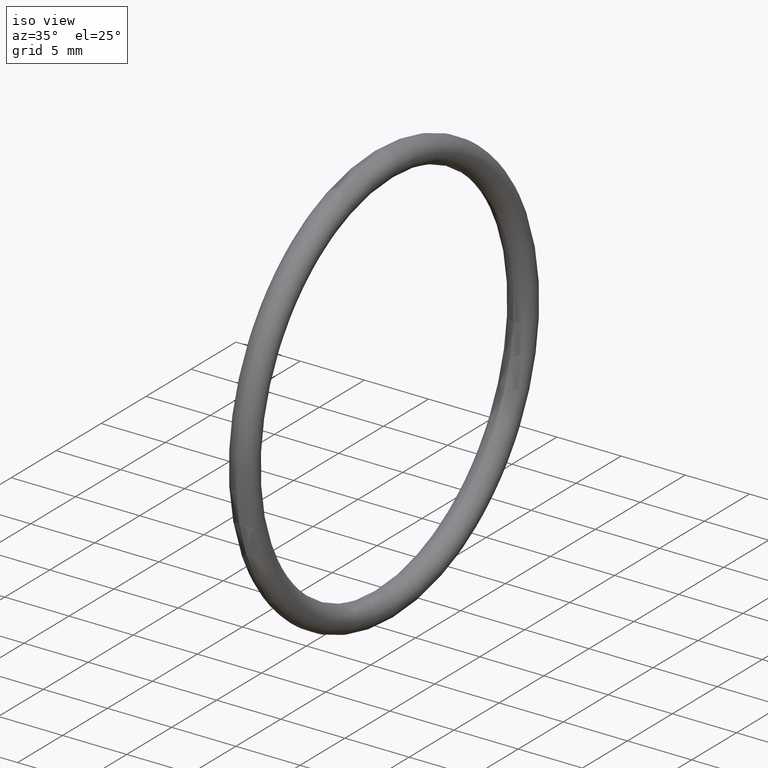
[diagram: clean part render]
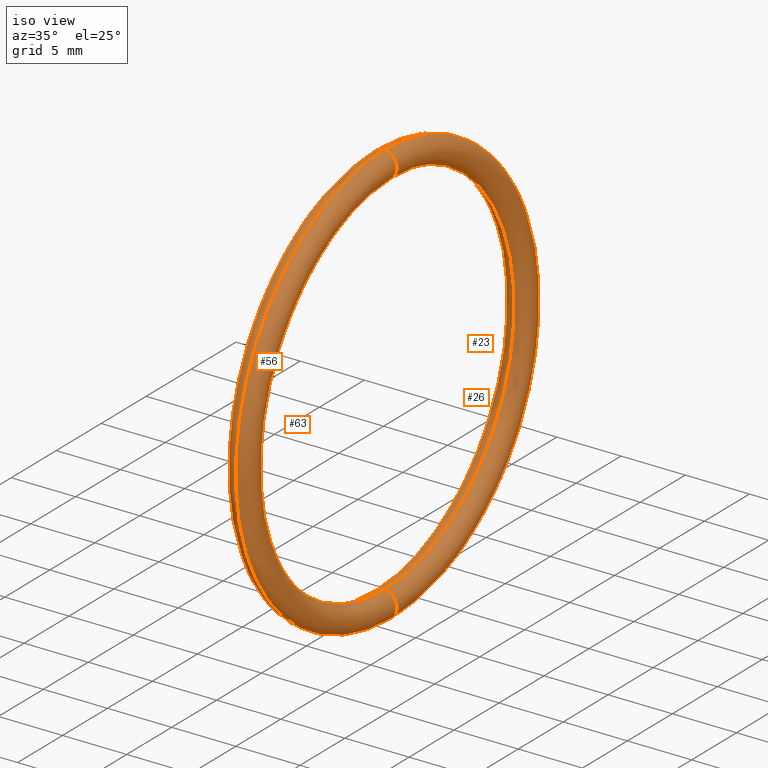
[diagram: same view with one multi-face feature highlighted, each face labeled with its STEP entity id]
A machine part, iso view. The highlighted faces form ONE feature: a constant-radius fillet chain: 4 tangent blend faces with common blend radius 1.016 mm. The faces share edges in the B-rep.
Their STEP definitions:
[1] entity #56 (Torus):
#5 = CARTESIAN_POINT ( 'NONE',  ( 0.1000000000000000700, 0.0000000000000000000, 0.5699999999999999500 ) ) ;
#6 = DIRECTION ( 'NONE',  ( 0.0000000000000000000, 0.0000000000000000000, -1.000000000000000000 ) ) ;
#7 = DIRECTION ( 'NONE',  ( 0.0000000000000000000, -1.000000000000000000, 0.0000000000000000000 ) ) ;
#8 = AXIS2_PLACEMENT_3D ( 'NONE', #15, #7, #6 ) ;
#9 = CIRCLE ( 'NONE', #8, 0.03999999999999998000 ) ;
#15 = CARTESIAN_POINT ( 'NONE',  ( 0.1000000000000000700, 0.0000000000000000000, 0.6099999999999998800 ) ) ;
#18 = EDGE_LOOP ( 'NONE', ( #52, #29, #32, #21 ) ) ;
#19 = EDGE_CURVE ( 'NONE', #31, #20, #9, .T. ) ;
#20 = VERTEX_POINT ( 'NONE', #5 ) ;
#21 = ORIENTED_EDGE ( 'NONE', *, *, #47, .F. ) ;
#29 = ORIENTED_EDGE ( 'NONE', *, *, #30, .T. ) ;
#30 = EDGE_CURVE ( 'NONE', #54, #31, #70, .T. ) ;
#31 = VERTEX_POINT ( 'NONE', #78 ) ;
#32 = ORIENTED_EDGE ( 'NONE', *, *, #19, .T. ) ;
#47 = EDGE_CURVE ( 'NONE', #48, #20, #83, .T. ) ;
#48 = VERTEX_POINT ( 'NONE', #66 ) ;
#52 = ORIENTED_EDGE ( 'NONE', *, *, #53, .F. ) ;
#53 = EDGE_CURVE ( 'NONE', #54, #48, #65, .T. ) ;
#54 = VERTEX_POINT ( 'NONE', #159 ) ;
#56 = ADVANCED_FACE ( 'NONE', ( #158 ), #157, .T. ) ;
#65 = CIRCLE ( 'NONE', #163, 0.03999999999999998000 ) ;
#66 = CARTESIAN_POINT ( 'NONE',  ( 0.1000000000000000700, 6.980486755139912600E-017, -0.5699999999999999500 ) ) ;
#67 = DIRECTION ( 'NONE',  ( 0.0000000000000000000, 0.0000000000000000000, 1.000000000000000000 ) ) ;
#68 = DIRECTION ( 'NONE',  ( -1.000000000000000000, 0.0000000000000000000, 0.0000000000000000000 ) ) ;
#69 = CARTESIAN_POINT ( 'NONE',  ( 0.1000000000000000700, 0.0000000000000000000, 0.0000000000000000000 ) ) ;
#70 = CIRCLE ( 'NONE', #77, 0.6499999999999999100 ) ;
#76 = CARTESIAN_POINT ( 'NONE',  ( 0.1000000000000000700, 0.0000000000000000000, 0.0000000000000000000 ) ) ;
#77 = AXIS2_PLACEMENT_3D ( 'NONE', #76, #81, #80 ) ;
#78 = CARTESIAN_POINT ( 'NONE',  ( 0.1000000000000000700, 0.0000000000000000000, 0.6499999999999999100 ) ) ;
#80 = DIRECTION ( 'NONE',  ( 0.0000000000000000000, 0.0000000000000000000, 1.000000000000000000 ) ) ;
#81 = DIRECTION ( 'NONE',  ( -1.000000000000000000, 0.0000000000000000000, 0.0000000000000000000 ) ) ;
#82 = AXIS2_PLACEMENT_3D ( 'NONE', #69, #68, #67 ) ;
#83 = CIRCLE ( 'NONE', #82, 0.5699999999999999500 ) ;
#153 = DIRECTION ( 'NONE',  ( 0.0000000000000000000, 0.0000000000000000000, 1.000000000000000000 ) ) ;
#154 = DIRECTION ( 'NONE',  ( -1.000000000000000000, 0.0000000000000000000, 0.0000000000000000000 ) ) ;
#155 = CARTESIAN_POINT ( 'NONE',  ( 0.1000000000000000700, 0.0000000000000000000, 0.0000000000000000000 ) ) ;
#156 = AXIS2_PLACEMENT_3D ( 'NONE', #155, #154, #153 ) ;
#157 = TOROIDAL_SURFACE ( 'NONE', #156, 0.6099999999999998800, 0.04000000000000000100 ) ;
#158 = FACE_OUTER_BOUND ( 'NONE', #18, .T. ) ;
#159 = CARTESIAN_POINT ( 'NONE',  ( 0.1000000000000000700, 7.960204194457794200E-017, -0.6499999999999999100 ) ) ;
#160 = DIRECTION ( 'NONE',  ( 0.0000000000000000000, -1.224646799147354900E-016, 1.000000000000000000 ) ) ;
#161 = DIRECTION ( 'NONE',  ( 0.0000000000000000000, 1.000000000000000000, 1.224646799147353200E-016 ) ) ;
#162 = CARTESIAN_POINT ( 'NONE',  ( 0.1000000000000000700, 7.470345474798854000E-017, -0.6099999999999998800 ) ) ;
#163 = AXIS2_PLACEMENT_3D ( 'NONE', #162, #161, #160 ) ;
[2] entity #63 (Torus):
#5 = CARTESIAN_POINT ( 'NONE',  ( 0.1000000000000000700, 0.0000000000000000000, 0.5699999999999999500 ) ) ;
#16 = ORIENTED_EDGE ( 'NONE', *, *, #59, .T. ) ;
#20 = VERTEX_POINT ( 'NONE', #5 ) ;
#30 = EDGE_CURVE ( 'NONE', #54, #31, #70, .T. ) ;
#31 = VERTEX_POINT ( 'NONE', #78 ) ;
#47 = EDGE_CURVE ( 'NONE', #48, #20, #83, .T. ) ;
#48 = VERTEX_POINT ( 'NONE', #66 ) ;
#49 = ORIENTED_EDGE ( 'NONE', *, *, #30, .F. ) ;
#50 = ORIENTED_EDGE ( 'NONE', *, *, #62, .F. ) ;
#51 = ORIENTED_EDGE ( 'NONE', *, *, #47, .T. ) ;
#54 = VERTEX_POINT ( 'NONE', #159 ) ;
#59 = EDGE_CURVE ( 'NONE', #20, #31, #152, .T. ) ;
#62 = EDGE_CURVE ( 'NONE', #48, #54, #136, .T. ) ;
#63 = ADVANCED_FACE ( 'NONE', ( #132 ), #130, .T. ) ;
#64 = EDGE_LOOP ( 'NONE', ( #49, #50, #51, #16 ) ) ;
#66 = CARTESIAN_POINT ( 'NONE',  ( 0.1000000000000000700, 6.980486755139912600E-017, -0.5699999999999999500 ) ) ;
#67 = DIRECTION ( 'NONE',  ( 0.0000000000000000000, 0.0000000000000000000, 1.000000000000000000 ) ) ;
#68 = DIRECTION ( 'NONE',  ( -1.000000000000000000, 0.0000000000000000000, 0.0000000000000000000 ) ) ;
#69 = CARTESIAN_POINT ( 'NONE',  ( 0.1000000000000000700, 0.0000000000000000000, 0.0000000000000000000 ) ) ;
#70 = CIRCLE ( 'NONE', #77, 0.6499999999999999100 ) ;
#71 = DIRECTION ( 'NONE',  ( 0.0000000000000000000, 0.0000000000000000000, -1.000000000000000000 ) ) ;
#72 = DIRECTION ( 'NONE',  ( 0.0000000000000000000, -1.000000000000000000, 0.0000000000000000000 ) ) ;
#73 = CARTESIAN_POINT ( 'NONE',  ( 0.1000000000000000700, 0.0000000000000000000, 0.6099999999999998800 ) ) ;
#74 = AXIS2_PLACEMENT_3D ( 'NONE', #73, #72, #71 ) ;
#75 = CARTESIAN_POINT ( 'NONE',  ( 0.1000000000000000700, 7.470345474798854000E-017, -0.6099999999999998800 ) ) ;
#76 = CARTESIAN_POINT ( 'NONE',  ( 0.1000000000000000700, 0.0000000000000000000, 0.0000000000000000000 ) ) ;
#77 = AXIS2_PLACEMENT_3D ( 'NONE', #76, #81, #80 ) ;
#78 = CARTESIAN_POINT ( 'NONE',  ( 0.1000000000000000700, 0.0000000000000000000, 0.6499999999999999100 ) ) ;
#80 = DIRECTION ( 'NONE',  ( 0.0000000000000000000, 0.0000000000000000000, 1.000000000000000000 ) ) ;
#81 = DIRECTION ( 'NONE',  ( -1.000000000000000000, 0.0000000000000000000, 0.0000000000000000000 ) ) ;
#82 = AXIS2_PLACEMENT_3D ( 'NONE', #69, #68, #67 ) ;
#83 = CIRCLE ( 'NONE', #82, 0.5699999999999999500 ) ;
#130 = TOROIDAL_SURFACE ( 'NONE', #131, 0.6099999999999998800, 0.04000000000000000100 ) ;
#131 = AXIS2_PLACEMENT_3D ( 'NONE', #144, #143, #142 ) ;
#132 = FACE_OUTER_BOUND ( 'NONE', #64, .T. ) ;
#133 = DIRECTION ( 'NONE',  ( 0.0000000000000000000, -1.224646799147354900E-016, 1.000000000000000000 ) ) ;
#134 = DIRECTION ( 'NONE',  ( 0.0000000000000000000, 1.000000000000000000, 1.224646799147353200E-016 ) ) ;
#135 = AXIS2_PLACEMENT_3D ( 'NONE', #75, #134, #133 ) ;
#136 = CIRCLE ( 'NONE', #135, 0.03999999999999998000 ) ;
#142 = DIRECTION ( 'NONE',  ( 0.0000000000000000000, 0.0000000000000000000, 1.000000000000000000 ) ) ;
#143 = DIRECTION ( 'NONE',  ( -1.000000000000000000, 0.0000000000000000000, 0.0000000000000000000 ) ) ;
#144 = CARTESIAN_POINT ( 'NONE',  ( 0.1000000000000000700, 0.0000000000000000000, 0.0000000000000000000 ) ) ;
#152 = CIRCLE ( 'NONE', #74, 0.03999999999999998000 ) ;
#159 = CARTESIAN_POINT ( 'NONE',  ( 0.1000000000000000700, 7.960204194457794200E-017, -0.6499999999999999100 ) ) ;
[3] entity #23 (Torus):
#3 = EDGE_CURVE ( 'NONE', #20, #48, #14, .T. ) ;
#4 = FACE_OUTER_BOUND ( 'NONE', #24, .T. ) ;
#5 = CARTESIAN_POINT ( 'NONE',  ( 0.1000000000000000700, 0.0000000000000000000, 0.5699999999999999500 ) ) ;
#10 = DIRECTION ( 'NONE',  ( 0.0000000000000000000, 0.0000000000000000000, 1.000000000000000000 ) ) ;
#11 = DIRECTION ( 'NONE',  ( -1.000000000000000000, 0.0000000000000000000, 0.0000000000000000000 ) ) ;
#12 = CARTESIAN_POINT ( 'NONE',  ( 0.1000000000000000700, 0.0000000000000000000, 0.0000000000000000000 ) ) ;
#13 = AXIS2_PLACEMENT_3D ( 'NONE', #12, #11, #10 ) ;
#14 = CIRCLE ( 'NONE', #13, 0.5699999999999999500 ) ;
#20 = VERTEX_POINT ( 'NONE', #5 ) ;
#23 = ADVANCED_FACE ( 'NONE', ( #4 ), #46, .T. ) ;
#24 = EDGE_LOOP ( 'NONE', ( #57, #58, #60, #61 ) ) ;
#25 = EDGE_CURVE ( 'NONE', #31, #54, #41, .T. ) ;
#31 = VERTEX_POINT ( 'NONE', #78 ) ;
#37 = DIRECTION ( 'NONE',  ( 0.0000000000000000000, 0.0000000000000000000, 1.000000000000000000 ) ) ;
#38 = DIRECTION ( 'NONE',  ( -1.000000000000000000, 0.0000000000000000000, 0.0000000000000000000 ) ) ;
#39 = CARTESIAN_POINT ( 'NONE',  ( 0.1000000000000000700, 0.0000000000000000000, 0.0000000000000000000 ) ) ;
#40 = AXIS2_PLACEMENT_3D ( 'NONE', #39, #38, #37 ) ;
#41 = CIRCLE ( 'NONE', #40, 0.6499999999999999100 ) ;
#42 = DIRECTION ( 'NONE',  ( 0.0000000000000000000, 0.0000000000000000000, 1.000000000000000000 ) ) ;
#43 = DIRECTION ( 'NONE',  ( -1.000000000000000000, 0.0000000000000000000, 0.0000000000000000000 ) ) ;
#44 = CARTESIAN_POINT ( 'NONE',  ( 0.1000000000000000700, 0.0000000000000000000, 0.0000000000000000000 ) ) ;
#45 = AXIS2_PLACEMENT_3D ( 'NONE', #44, #43, #42 ) ;
#46 = TOROIDAL_SURFACE ( 'NONE', #45, 0.6099999999999998800, 0.04000000000000000100 ) ;
#48 = VERTEX_POINT ( 'NONE', #66 ) ;
#54 = VERTEX_POINT ( 'NONE', #159 ) ;
#57 = ORIENTED_EDGE ( 'NONE', *, *, #25, .F. ) ;
#58 = ORIENTED_EDGE ( 'NONE', *, *, #59, .F. ) ;
#59 = EDGE_CURVE ( 'NONE', #20, #31, #152, .T. ) ;
#60 = ORIENTED_EDGE ( 'NONE', *, *, #3, .T. ) ;
#61 = ORIENTED_EDGE ( 'NONE', *, *, #62, .T. ) ;
#62 = EDGE_CURVE ( 'NONE', #48, #54, #136, .T. ) ;
#66 = CARTESIAN_POINT ( 'NONE',  ( 0.1000000000000000700, 6.980486755139912600E-017, -0.5699999999999999500 ) ) ;
#71 = DIRECTION ( 'NONE',  ( 0.0000000000000000000, 0.0000000000000000000, -1.000000000000000000 ) ) ;
#72 = DIRECTION ( 'NONE',  ( 0.0000000000000000000, -1.000000000000000000, 0.0000000000000000000 ) ) ;
#73 = CARTESIAN_POINT ( 'NONE',  ( 0.1000000000000000700, 0.0000000000000000000, 0.6099999999999998800 ) ) ;
#74 = AXIS2_PLACEMENT_3D ( 'NONE', #73, #72, #71 ) ;
#75 = CARTESIAN_POINT ( 'NONE',  ( 0.1000000000000000700, 7.470345474798854000E-017, -0.6099999999999998800 ) ) ;
#78 = CARTESIAN_POINT ( 'NONE',  ( 0.1000000000000000700, 0.0000000000000000000, 0.6499999999999999100 ) ) ;
#133 = DIRECTION ( 'NONE',  ( 0.0000000000000000000, -1.224646799147354900E-016, 1.000000000000000000 ) ) ;
#134 = DIRECTION ( 'NONE',  ( 0.0000000000000000000, 1.000000000000000000, 1.224646799147353200E-016 ) ) ;
#135 = AXIS2_PLACEMENT_3D ( 'NONE', #75, #134, #133 ) ;
#136 = CIRCLE ( 'NONE', #135, 0.03999999999999998000 ) ;
#152 = CIRCLE ( 'NONE', #74, 0.03999999999999998000 ) ;
#159 = CARTESIAN_POINT ( 'NONE',  ( 0.1000000000000000700, 7.960204194457794200E-017, -0.6499999999999999100 ) ) ;
[4] entity #26 (Torus):
#1 = ORIENTED_EDGE ( 'NONE', *, *, #53, .T. ) ;
#2 = ORIENTED_EDGE ( 'NONE', *, *, #3, .F. ) ;
#3 = EDGE_CURVE ( 'NONE', #20, #48, #14, .T. ) ;
#5 = CARTESIAN_POINT ( 'NONE',  ( 0.1000000000000000700, 0.0000000000000000000, 0.5699999999999999500 ) ) ;
#6 = DIRECTION ( 'NONE',  ( 0.0000000000000000000, 0.0000000000000000000, -1.000000000000000000 ) ) ;
#7 = DIRECTION ( 'NONE',  ( 0.0000000000000000000, -1.000000000000000000, 0.0000000000000000000 ) ) ;
#8 = AXIS2_PLACEMENT_3D ( 'NONE', #15, #7, #6 ) ;
#9 = CIRCLE ( 'NONE', #8, 0.03999999999999998000 ) ;
#10 = DIRECTION ( 'NONE',  ( 0.0000000000000000000, 0.0000000000000000000, 1.000000000000000000 ) ) ;
#11 = DIRECTION ( 'NONE',  ( -1.000000000000000000, 0.0000000000000000000, 0.0000000000000000000 ) ) ;
#12 = CARTESIAN_POINT ( 'NONE',  ( 0.1000000000000000700, 0.0000000000000000000, 0.0000000000000000000 ) ) ;
#13 = AXIS2_PLACEMENT_3D ( 'NONE', #12, #11, #10 ) ;
#14 = CIRCLE ( 'NONE', #13, 0.5699999999999999500 ) ;
#15 = CARTESIAN_POINT ( 'NONE',  ( 0.1000000000000000700, 0.0000000000000000000, 0.6099999999999998800 ) ) ;
#17 = EDGE_LOOP ( 'NONE', ( #27, #28, #1, #2 ) ) ;
#19 = EDGE_CURVE ( 'NONE', #31, #20, #9, .T. ) ;
#20 = VERTEX_POINT ( 'NONE', #5 ) ;
#25 = EDGE_CURVE ( 'NONE', #31, #54, #41, .T. ) ;
#26 = ADVANCED_FACE ( 'NONE', ( #36 ), #35, .T. ) ;
#27 = ORIENTED_EDGE ( 'NONE', *, *, #19, .F. ) ;
#28 = ORIENTED_EDGE ( 'NONE', *, *, #25, .T. ) ;
#31 = VERTEX_POINT ( 'NONE', #78 ) ;
#33 = CARTESIAN_POINT ( 'NONE',  ( 0.1000000000000000700, 0.0000000000000000000, 0.0000000000000000000 ) ) ;
#34 = AXIS2_PLACEMENT_3D ( 'NONE', #33, #79, #84 ) ;
#35 = TOROIDAL_SURFACE ( 'NONE', #34, 0.6099999999999998800, 0.04000000000000000100 ) ;
#36 = FACE_OUTER_BOUND ( 'NONE', #17, .T. ) ;
#37 = DIRECTION ( 'NONE',  ( 0.0000000000000000000, 0.0000000000000000000, 1.000000000000000000 ) ) ;
#38 = DIRECTION ( 'NONE',  ( -1.000000000000000000, 0.0000000000000000000, 0.0000000000000000000 ) ) ;
#39 = CARTESIAN_POINT ( 'NONE',  ( 0.1000000000000000700, 0.0000000000000000000, 0.0000000000000000000 ) ) ;
#40 = AXIS2_PLACEMENT_3D ( 'NONE', #39, #38, #37 ) ;
#41 = CIRCLE ( 'NONE', #40, 0.6499999999999999100 ) ;
#48 = VERTEX_POINT ( 'NONE', #66 ) ;
#53 = EDGE_CURVE ( 'NONE', #54, #48, #65, .T. ) ;
#54 = VERTEX_POINT ( 'NONE', #159 ) ;
#65 = CIRCLE ( 'NONE', #163, 0.03999999999999998000 ) ;
#66 = CARTESIAN_POINT ( 'NONE',  ( 0.1000000000000000700, 6.980486755139912600E-017, -0.5699999999999999500 ) ) ;
#78 = CARTESIAN_POINT ( 'NONE',  ( 0.1000000000000000700, 0.0000000000000000000, 0.6499999999999999100 ) ) ;
#79 = DIRECTION ( 'NONE',  ( -1.000000000000000000, 0.0000000000000000000, 0.0000000000000000000 ) ) ;
#84 = DIRECTION ( 'NONE',  ( 0.0000000000000000000, 0.0000000000000000000, 1.000000000000000000 ) ) ;
#159 = CARTESIAN_POINT ( 'NONE',  ( 0.1000000000000000700, 7.960204194457794200E-017, -0.6499999999999999100 ) ) ;
#160 = DIRECTION ( 'NONE',  ( 0.0000000000000000000, -1.224646799147354900E-016, 1.000000000000000000 ) ) ;
#161 = DIRECTION ( 'NONE',  ( 0.0000000000000000000, 1.000000000000000000, 1.224646799147353200E-016 ) ) ;
#162 = CARTESIAN_POINT ( 'NONE',  ( 0.1000000000000000700, 7.470345474798854000E-017, -0.6099999999999998800 ) ) ;
#163 = AXIS2_PLACEMENT_3D ( 'NONE', #162, #161, #160 ) ;